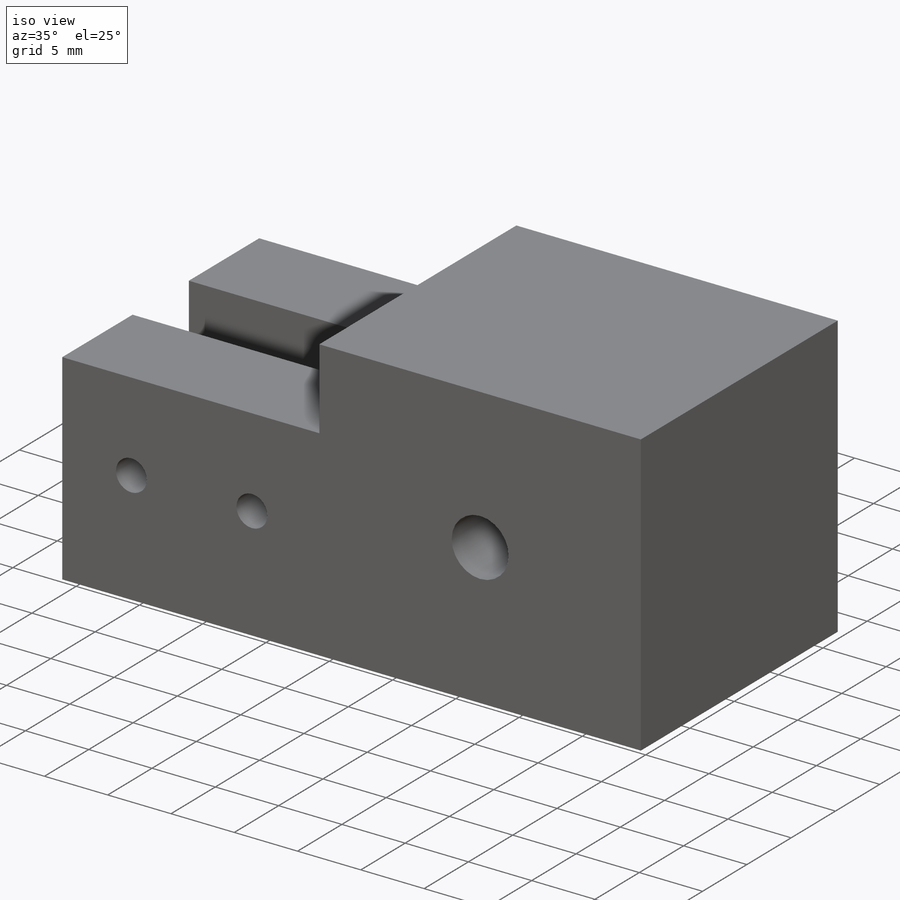
[diagram: iso view]
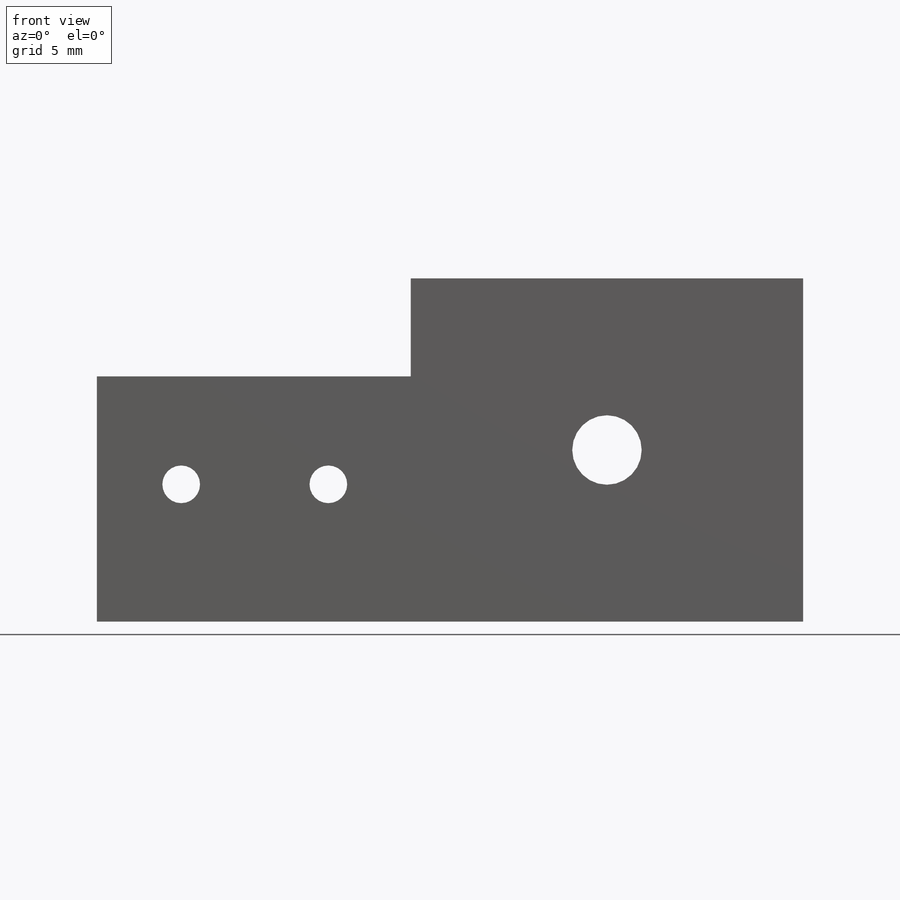
[diagram: front view]
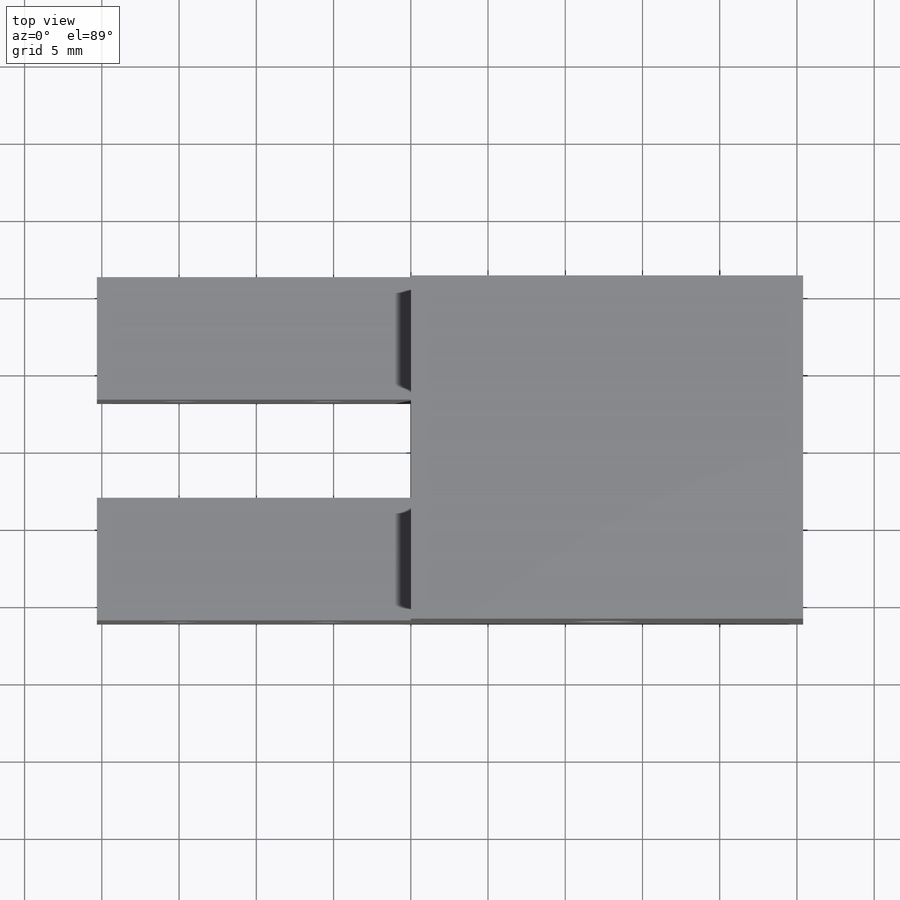
[diagram: top view]
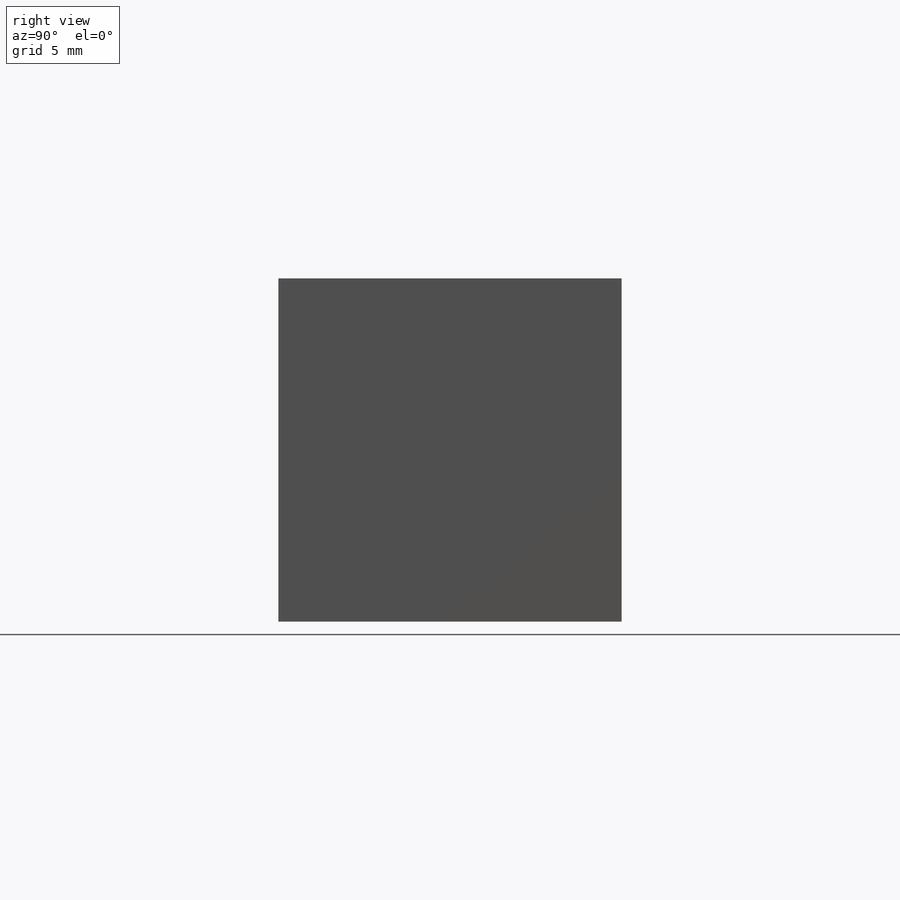
[diagram: right view]
SOLIDWORKS PART (.sldprt)
format: sldprt  version: not decoded by parser v0  size: 236,544 bytes
history: native  units: mm
features: sketch x6, extrude x2, hole x2, material x1 (+12 scaffold rows collapsed)
feature tree (23):
  scaffold x12  (default folders/planes/origin — collapsed)
  material  "Plain Carbon Steel"
  sketch  "Sketch1"  dims[D1=22.225mm D2=22.225mm]
  extrude  "Boss-Extrude1"  Depth=25.4mm
  hole  "#8 Clearance Hole1"  Diameter=4.4958mm Depth=22.225mm
  sketch  "3DSketch1"  dims[c1.D1=11.1125mm c1.D2=25.4mm c1.D3=22.225mm c1.D4=25.4mm c1.D5=12.7mm c2.D2=0.0mm]
  sketch  "Sketch2"  dims[hole-wizard template sketch: 60 standard entries collapsed; hole parameters kept: c18.Thru Hole Depth=22.225mm]
  sketch  "Sketch3"  dims[D1=9.525mm D2=6.35mm]
  extrude  "Boss-Extrude2"  Depth=20.32mm
  hole  "#2 Clearance Hole1"  Diameter=2.4384mm Depth=22.225mm
  sketch  "Sketch5"  dims[D2=5.334mm D3=9.525mm D4=6.985mm D5=6.985mm D1=0.0mm]
  sketch  "Sketch6"  dims[hole-wizard template sketch: 60 standard entries collapsed; hole parameters kept: c18.Thru Hole Depth=22.225mm]
decode coverage: 10 of 10 modeling features carry decoded parameters
note: ~ marks probable driven/reference dimensions
note: suppression state not decoded; provenance and decode notes live in map.json
